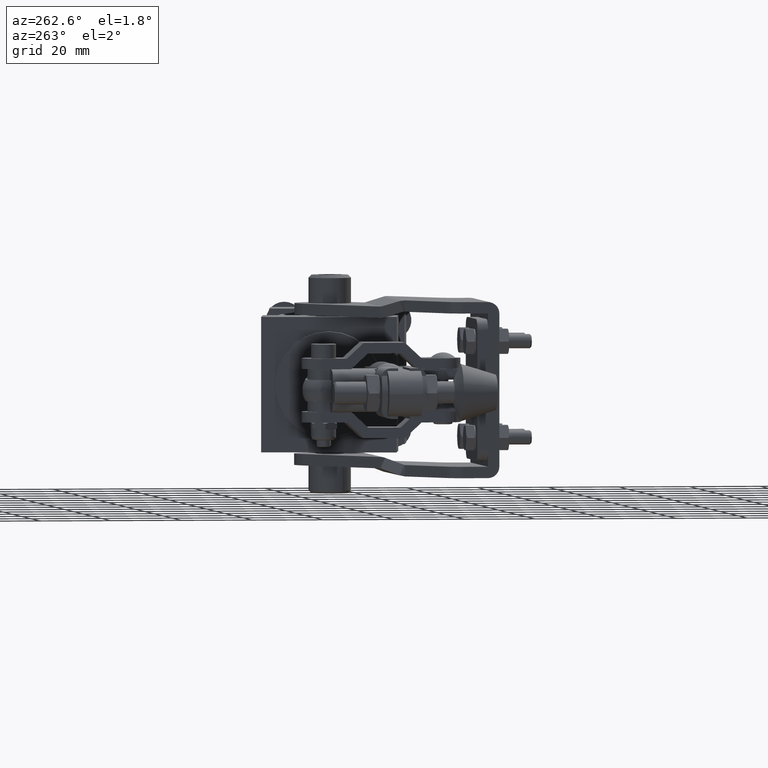
[diagram: clean part render]
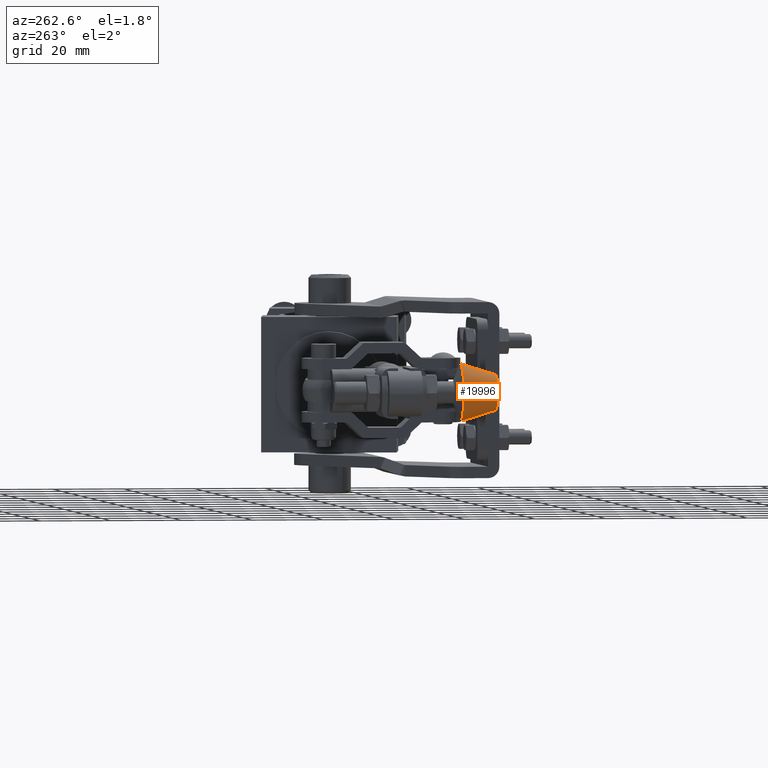
[diagram: same view with one face highlighted and labeled with its STEP entity id]
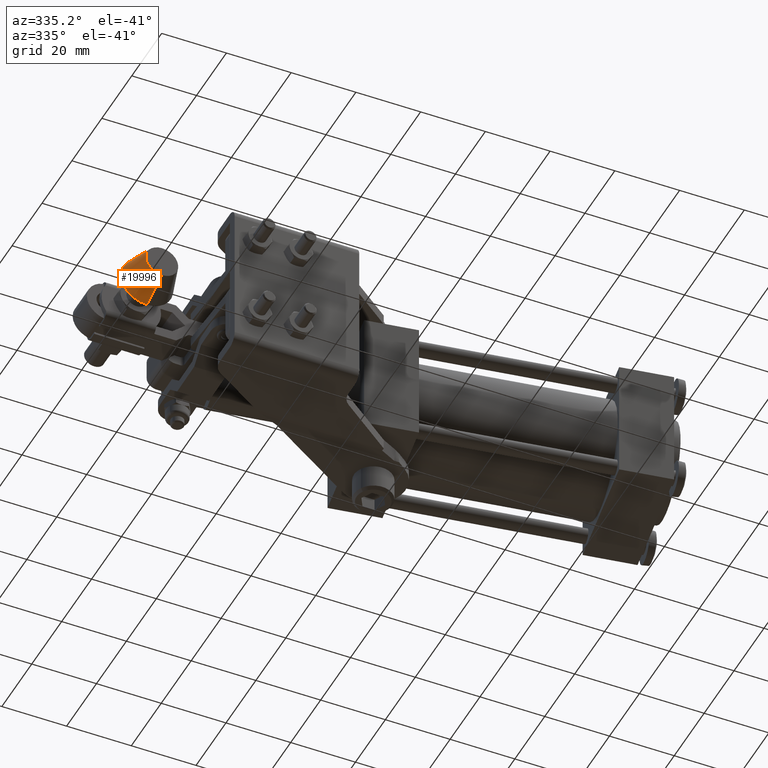
[diagram: same view with one face highlighted and labeled with its STEP entity id]
A machine part, auxiliary view. The second image highlights one B-rep face of the part: STEP entity #19996.
A second angle (auxiliary view) of the same face is appended — the face is thin or edge-on in the first view.
In plain terms, the highlighted conical surface has half-angle 17.223 deg.
Its self-contained STEP definition (entity closure, byte-faithful):
#2450 = EDGE_CURVE ( 'NONE', #8141, #16091, #13258, .T. ) ;
#3816 = LINE ( 'NONE', #28807, #17325 ) ;
#5230 = VERTEX_POINT ( 'NONE', #29201 ) ;
#6132 = EDGE_CURVE ( 'NONE', #5230, #16160, #21349, .T. ) ;
#6366 = CARTESIAN_POINT ( 'NONE',  ( -59.19999999999979700, 3.750000000000175900, -1.372944862378122300E-015 ) ) ;
#7486 = AXIS2_PLACEMENT_3D ( 'NONE', #30987, #10072, #13316 ) ;
#7956 = DIRECTION ( 'NONE',  ( 0.0000000000000000000, 0.9551573261744535900, 0.2960987711140805100 ) ) ;
#8098 = ORIENTED_EDGE ( 'NONE', *, *, #14052, .F. ) ;
#8141 = VERTEX_POINT ( 'NONE', #19664 ) ;
#8895 = FACE_OUTER_BOUND ( 'NONE', #13390, .T. ) ;
#10072 = DIRECTION ( 'NONE',  ( -0.0000000000000000000, -1.000000000000000000, -0.0000000000000000000 ) ) ;
#11429 = AXIS2_PLACEMENT_3D ( 'NONE', #6366, #17272, #30791 ) ;
#12036 = DIRECTION ( 'NONE',  ( 0.0000000000000000000, 0.0000000000000000000, 1.000000000000000000 ) ) ;
#13258 = CIRCLE ( 'NONE', #7486, 8.099999999999999600 ) ;
#13316 = DIRECTION ( 'NONE',  ( 0.0000000000000000000, 0.0000000000000000000, -1.000000000000000000 ) ) ;
#13390 = EDGE_LOOP ( 'NONE', ( #8098, #16585, #21545, #26871 ) ) ;
#13745 = CARTESIAN_POINT ( 'NONE',  ( -59.19999999999979700, 3.750000000000175900, -5.000000000000001800 ) ) ;
#14052 = EDGE_CURVE ( 'NONE', #16160, #16091, #3816, .T. ) ;
#16091 = VERTEX_POINT ( 'NONE', #30117 ) ;
#16160 = VERTEX_POINT ( 'NONE', #13745 ) ;
#16585 = ORIENTED_EDGE ( 'NONE', *, *, #6132, .F. ) ;
#16872 = DIRECTION ( 'NONE',  ( 3.626164122763234500E-017, 0.9551573261744535900, -0.2960987711140805100 ) ) ;
#16932 = EDGE_CURVE ( 'NONE', #5230, #8141, #21847, .T. ) ;
#17272 = DIRECTION ( 'NONE',  ( -0.0000000000000000000, -1.000000000000000000, -0.0000000000000000000 ) ) ;
#17325 = VECTOR ( 'NONE', #16872, 999.9999999999998900 ) ;
#17519 = AXIS2_PLACEMENT_3D ( 'NONE', #26362, #26259, #12036 ) ;
#19664 = CARTESIAN_POINT ( 'NONE',  ( -59.19999999999979700, 13.75000000000017800, 8.099999999999997900 ) ) ;
#19898 = CARTESIAN_POINT ( 'NONE',  ( -59.19999999999979700, 3.750000000000175900, 4.999999999999998200 ) ) ;
#19996 = ADVANCED_FACE ( 'NONE', ( #8895 ), #24271, .T. ) ;
#21349 = CIRCLE ( 'NONE', #11429, 5.000000000000000000 ) ;
#21545 = ORIENTED_EDGE ( 'NONE', *, *, #16932, .T. ) ;
#21847 = LINE ( 'NONE', #19898, #28146 ) ;
#24271 = CONICAL_SURFACE ( 'NONE', #17519, 5.000000000000000000, 0.3006056700423954100 ) ;
#26259 = DIRECTION ( 'NONE',  ( 0.0000000000000000000, 1.000000000000000000, 0.0000000000000000000 ) ) ;
#26362 = CARTESIAN_POINT ( 'NONE',  ( -59.19999999999979700, 3.750000000000175900, -1.372944862378122300E-015 ) ) ;
#26871 = ORIENTED_EDGE ( 'NONE', *, *, #2450, .T. ) ;
#28146 = VECTOR ( 'NONE', #7956, 999.9999999999998900 ) ;
#28807 = CARTESIAN_POINT ( 'NONE',  ( -59.19999999999979700, 3.750000000000175900, -5.000000000000001800 ) ) ;
#29201 = CARTESIAN_POINT ( 'NONE',  ( -59.19999999999979700, 3.750000000000175900, 4.999999999999998200 ) ) ;
#30117 = CARTESIAN_POINT ( 'NONE',  ( -59.19999999999979700, 13.75000000000017800, -8.100000000000001400 ) ) ;
#30791 = DIRECTION ( 'NONE',  ( 0.0000000000000000000, 0.0000000000000000000, -1.000000000000000000 ) ) ;
#30987 = CARTESIAN_POINT ( 'NONE',  ( -59.19999999999979700, 13.75000000000017800, -1.372944862378122300E-015 ) ) ;